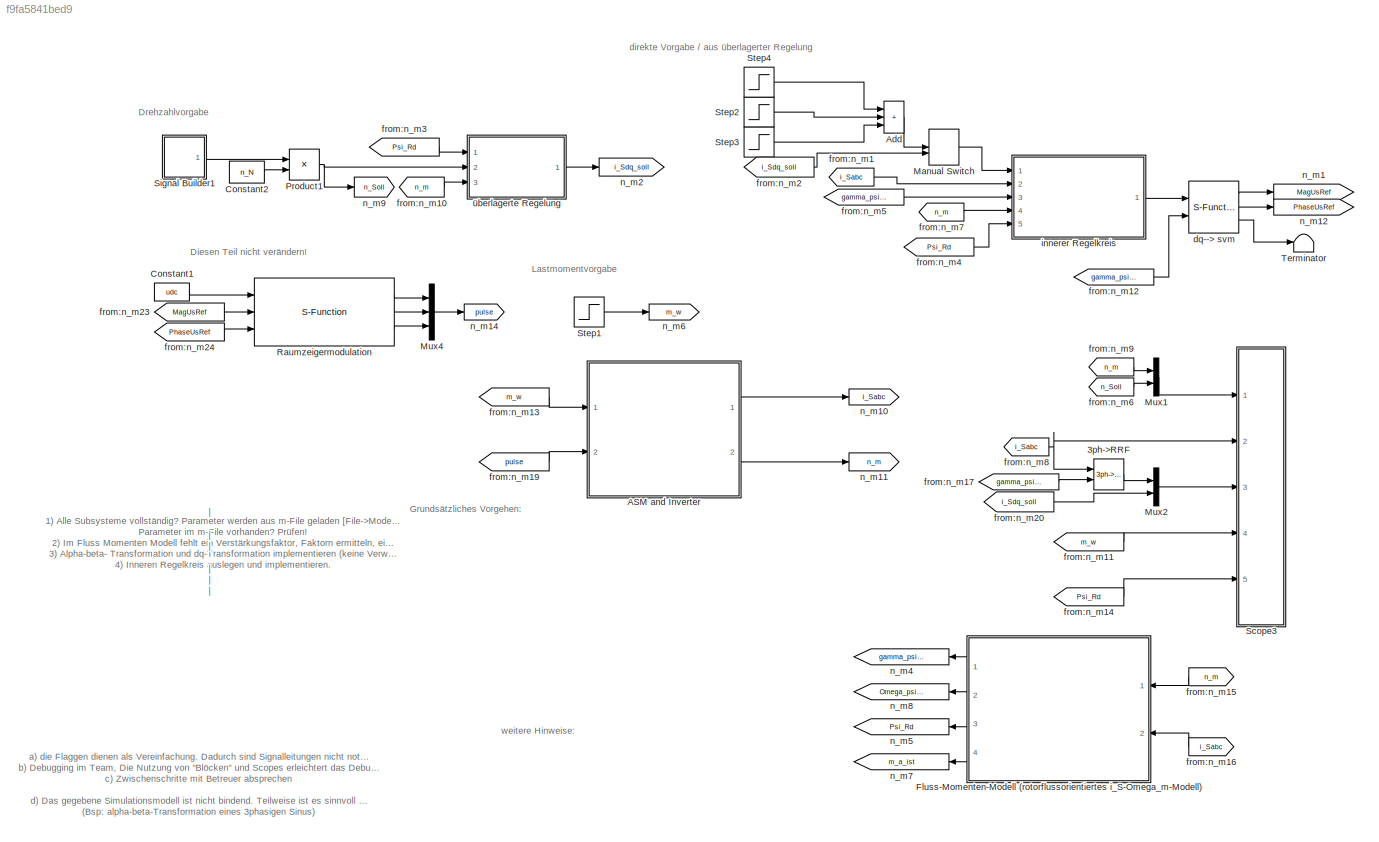
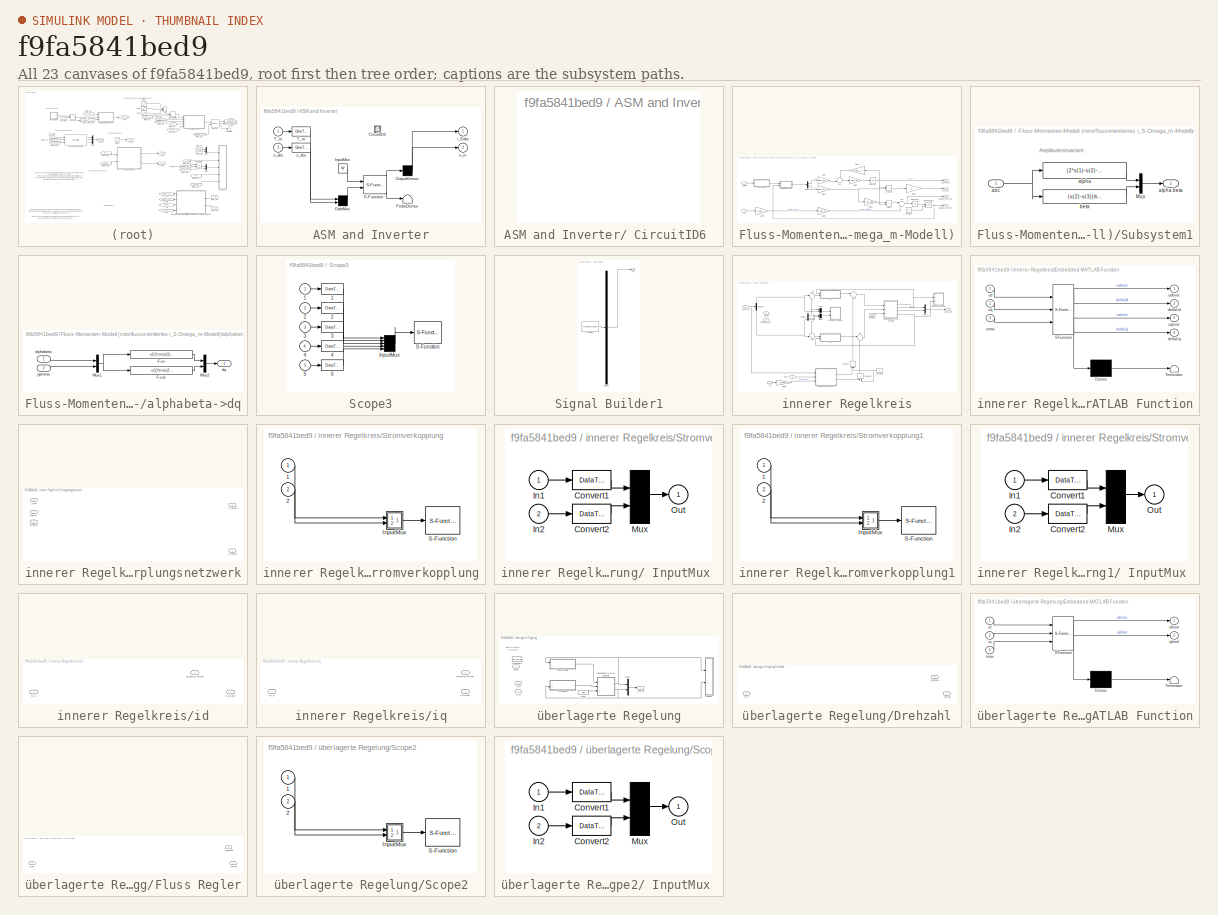
[diagram: thumbnail index - all 23 canvases of the model, root first then tree order]
MODEL mdl_f9fa5841bed9
KIND model
CONFIG AbsTol = auto
CONFIG EnableMultiTasking = on
CONFIG FixedStep = Ta
CONFIG MaxStep = 1e-5
CONFIG MinStep = auto
CONFIG RelTol = 1e-3
CONFIG SampleTimeConstraint = Unconstrained
CONFIG SolverName = ode45
CONFIG StartTime = 0.0
CONFIG StopTime = 0.5
BLOCK [Reference] 3ph->RRF  REF=plecslib_extras2/Transformations/3ph->RRF
  Ports = [2, 1]
  SourceBlock = plecslib_extras2/Transformations/3ph->RRF
  SourceProductName = PLECS Extras
  SourceType = Transformation 3ph->RRF
BLOCK [SubSystem] ASM and Inverter
  CopyFcn = plecs('sl', 203);
  DeleteFcn = plecs('sl', 205);
  DestroyFcn = plecs('sl', 207);
  ErrorFcn = plerrorfcn
  InitFcn = plecs('sl', 214);
  LoadFcn = plecs('sl', 200);
  NameChangeFcn = plecs('sl', 210);
  OpenFcn = plecs('sl', 202);
  Ports = [2, 2]
  PostSaveFcn = plecs('sl', 201);
  PreCopyFcn = plecs('sl', 216);
  PreSaveFcn = plecs('sl', 211);
  RequestExecContextInheritance = off
  StartFcn = plecs('sl', 208);
  StopFcn = plecs('sl', 209);
  UndoDeleteFcn = plecs('sl', 206);
BLOCK [SubSystem] ASM and Inverter/ CircuitID6 
  Ports = []
  RequestExecContextInheritance = off
BLOCK [Mux] ASM and Inverter/ GateMux 
  Inputs = [ 1 3 ]
  Ports = [2, 1]
BLOCK [Ground] ASM and Inverter/ InputMux 
BLOCK [Demux] ASM and Inverter/ OutputDemux 
  Outputs = [ 3 1 ]
  Ports = [1, 2]
BLOCK [Terminator] ASM and Inverter/ ProbeDemux 
BLOCK [S-Function] ASM and Inverter/ S-Function 
  EnableBusSupport = off
  FunctionName = plecs
  Ports = [2, 2]
  SFcnIsStateOwnerBlock = off
  SFunctionDeploymentMode = off
BLOCK [DataTypeConversion] ASM and Inverter/ T_m 
BLOCK [DataTypeConversion] ASM and Inverter/ s_abc 
BLOCK [Inport] ASM and Inverter/T_m
  PortDimensions = 1
BLOCK [Outport] ASM and Inverter/i_Sabc
  PortDimensions = 3
BLOCK [Outport] ASM and Inverter/n_m
  Port = 2
  PortDimensions = 1
BLOCK [Inport] ASM and Inverter/s_abc
  Port = 2
  PortDimensions = 3
BLOCK [Sum] Add
  IconShape = rectangular
  Inputs = +++
  NameLocation = top
  Ports = [3, 1]
BLOCK [Constant] Constant1
  Value = udc
BLOCK [Constant] Constant2
  Value = n_N
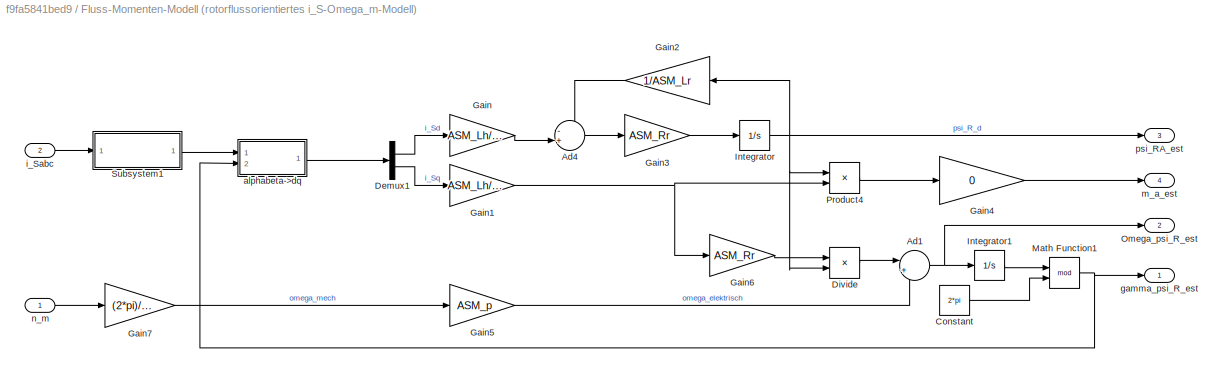
BLOCK [SubSystem] Fluss-Momenten-Modell (rotorflussorientiertes i_S-Omega_m-Modell)
  Ports = [2, 4]
  RequestExecContextInheritance = off
BLOCK [Sum] Fluss-Momenten-Modell (rotorflussorientiertes i_S-Omega_m-Modell)/Ad1
  Inputs = |++
  Ports = [2, 1]
BLOCK [Sum] Fluss-Momenten-Modell (rotorflussorientiertes i_S-Omega_m-Modell)/Ad4
  Inputs = -+|
  Ports = [2, 1]
BLOCK [Constant] Fluss-Momenten-Modell (rotorflussorientiertes i_S-Omega_m-Modell)/Constant
  Value = 2*pi
BLOCK [Demux] Fluss-Momenten-Modell (rotorflussorientiertes i_S-Omega_m-Modell)/Demux1
  Outputs = 2
  Ports = [1, 2]
BLOCK [Product] Fluss-Momenten-Modell (rotorflussorientiertes i_S-Omega_m-Modell)/Divide
  Inputs = */
  Ports = [2, 1]
BLOCK [Gain] Fluss-Momenten-Modell (rotorflussorientiertes i_S-Omega_m-Modell)/Gain
  Gain = ASM_Lh/ASM_Lr
BLOCK [Gain] Fluss-Momenten-Modell (rotorflussorientiertes i_S-Omega_m-Modell)/Gain1
  Gain = ASM_Lh/ASM_Lr
BLOCK [Gain] Fluss-Momenten-Modell (rotorflussorientiertes i_S-Omega_m-Modell)/Gain2
  Gain = 1/ASM_Lr
  NameLocation = top
BLOCK [Gain] Fluss-Momenten-Modell (rotorflussorientiertes i_S-Omega_m-Modell)/Gain3
  Gain = ASM_Rr
BLOCK [Gain] Fluss-Momenten-Modell (rotorflussorientiertes i_S-Omega_m-Modell)/Gain4
  Gain = 0
BLOCK [Gain] Fluss-Momenten-Modell (rotorflussorientiertes i_S-Omega_m-Modell)/Gain5
  Gain = ASM_p
BLOCK [Gain] Fluss-Momenten-Modell (rotorflussorientiertes i_S-Omega_m-Modell)/Gain6
  Gain = ASM_Rr
BLOCK [Gain] Fluss-Momenten-Modell (rotorflussorientiertes i_S-Omega_m-Modell)/Gain7
  Gain = (2*pi)/60
BLOCK [Integrator] Fluss-Momenten-Modell (rotorflussorientiertes i_S-Omega_m-Modell)/Integrator
  InitialCondition = 0.0001
  Ports = [1, 1]
BLOCK [Integrator] Fluss-Momenten-Modell (rotorflussorientiertes i_S-Omega_m-Modell)/Integrator1
  InitialCondition = 0.0001
  Ports = [1, 1]
BLOCK [Math] Fluss-Momenten-Modell (rotorflussorientiertes i_S-Omega_m-Modell)/Math Function1
  Operator = mod
  Ports = [2, 1]
  SignedPower = on
BLOCK [Outport] Fluss-Momenten-Modell (rotorflussorientiertes i_S-Omega_m-Modell)/Omega_psi_R_est
  Port = 2
BLOCK [Product] Fluss-Momenten-Modell (rotorflussorientiertes i_S-Omega_m-Modell)/Product4
  Ports = [2, 1]
  RndMeth = Zero
BLOCK [SubSystem] Fluss-Momenten-Modell (rotorflussorientiertes i_S-Omega_m-Modell)/Subsystem1
  Ports = [1, 1]
  RequestExecContextInheritance = off
BLOCK [Mux] Fluss-Momenten-Modell (rotorflussorientiertes i_S-Omega_m-Modell)/Subsystem1/Mux
  DisplayOption = bar
  Inputs = 2
  Ports = [2, 1]
BLOCK [Inport] Fluss-Momenten-Modell (rotorflussorientiertes i_S-Omega_m-Modell)/Subsystem1/abc
  PortDimensions = 3
BLOCK [Fcn] Fluss-Momenten-Modell (rotorflussorientiertes i_S-Omega_m-Modell)/Subsystem1/alpha
  Expr = (2*u(1)-u(2)-u(3))/3
BLOCK [Outport] Fluss-Momenten-Modell (rotorflussorientiertes i_S-Omega_m-Modell)/Subsystem1/alpha beta
BLOCK [Fcn] Fluss-Momenten-Modell (rotorflussorientiertes i_S-Omega_m-Modell)/Subsystem1/beta
  Expr = (u(2)-u(3))/sqrt(3)
BLOCK [SubSystem] Fluss-Momenten-Modell (rotorflussorientiertes i_S-Omega_m-Modell)/alphabeta->dq
  Ports = [2, 1]
  RequestExecContextInheritance = off
BLOCK [Fcn] Fluss-Momenten-Modell (rotorflussorientiertes i_S-Omega_m-Modell)/alphabeta->dq/Fcn
  Expr = u(1)*cos(u(3))+u(2)*sin(u(3))
BLOCK [Fcn] Fluss-Momenten-Modell (rotorflussorientiertes i_S-Omega_m-Modell)/alphabeta->dq/Fcn1
  Expr = -u(1)*sin(u(3))+u(2)*cos(u(3))
BLOCK [Mux] Fluss-Momenten-Modell (rotorflussorientiertes i_S-Omega_m-Modell)/alphabeta->dq/Mux1
  DisplayOption = bar
  Inputs = 2
  Ports = [2, 1]
BLOCK [Mux] Fluss-Momenten-Modell (rotorflussorientiertes i_S-Omega_m-Modell)/alphabeta->dq/Mux2
  DisplayOption = bar
  Inputs = 2
  Ports = [2, 1]
BLOCK [Inport] Fluss-Momenten-Modell (rotorflussorientiertes i_S-Omega_m-Modell)/alphabeta->dq/alphabeta
  NameLocation = top
BLOCK [Outport] Fluss-Momenten-Modell (rotorflussorientiertes i_S-Omega_m-Modell)/alphabeta->dq/dq
BLOCK [Inport] Fluss-Momenten-Modell (rotorflussorientiertes i_S-Omega_m-Modell)/alphabeta->dq/gamma
  Port = 2
BLOCK [Outport] Fluss-Momenten-Modell (rotorflussorientiertes i_S-Omega_m-Modell)/gamma_psi_R_est
BLOCK [Inport] Fluss-Momenten-Modell (rotorflussorientiertes i_S-Omega_m-Modell)/i_Sabc
  Port = 2
BLOCK [Outport] Fluss-Momenten-Modell (rotorflussorientiertes i_S-Omega_m-Modell)/m_a_est
  Port = 4
BLOCK [Inport] Fluss-Momenten-Modell (rotorflussorientiertes i_S-Omega_m-Modell)/n_m
BLOCK [Outport] Fluss-Momenten-Modell (rotorflussorientiertes i_S-Omega_m-Modell)/psi_RA_est
  Port = 3
BLOCK [ManualSwitch] Manual Switch
BLOCK [Mux] Mux1
  DisplayOption = bar
  Inputs = 2
  Ports = [2, 1]
BLOCK [Mux] Mux2
  DisplayOption = bar
  Inputs = 2
  Ports = [2, 1]
BLOCK [Mux] Mux4
  DisplayOption = bar
  Inputs = 3
  Ports = [3, 1]
BLOCK [Product] Product1
  Ports = [2, 1]
  RndMeth = Zero
BLOCK [S-Function] Raumzeigermodulation
  EnableBusSupport = off
  FunctionName = s_svm
  Parameters = f_sw*100,f_sw
  Ports = [3, 3]
  SFcnIsStateOwnerBlock = off
  SFunctionDeploymentMode = off
BLOCK [SubSystem] Scope3
  CopyFcn = plecs('sl', 303);
  DeleteFcn = plecs('sl', 305);
  DestroyFcn = plecs('sl', 307);
  ErrorFcn = plerrorfcn
  InitFcn = plecs('sl', 314);
  LoadFcn = plecs('sl', 300);
  NameChangeFcn = plecs('sl', 310);
  OpenFcn = plecs('sl', 302);
  Ports = [5]
  PreSaveFcn = plecs('sl', 311);
  RequestExecContextInheritance = off
  StartFcn = plecs('sl', 308);
  StopFcn = plecs('sl', 309);
  UndoDeleteFcn = plecs('sl', 306);
BLOCK [DataTypeConversion] Scope3/ 1 
BLOCK [DataTypeConversion] Scope3/ 2 
BLOCK [DataTypeConversion] Scope3/ 3 
BLOCK [DataTypeConversion] Scope3/ 4 
BLOCK [DataTypeConversion] Scope3/ 5 
BLOCK [Mux] Scope3/ InputMux 
  Inputs = 5
  Ports = [5, 1]
BLOCK [S-Function] Scope3/ S-Function 
  EnableBusSupport = off
  FunctionName = plecs
  Ports = [1]
  SFcnIsStateOwnerBlock = off
  SFunctionDeploymentMode = off
BLOCK [Inport] Scope3/1
BLOCK [Inport] Scope3/2
  Port = 2
BLOCK [Inport] Scope3/3
  Port = 3
BLOCK [Inport] Scope3/4
  Port = 4
BLOCK [Inport] Scope3/5
  Port = 5
BLOCK [SubSystem] Signal Builder1
  ClipboardFcn = sigbuilder_block('clipboard');
  CloseFcn = sigbuilder_block('close');
  ContinueFcn = sigbuilder_block('continue')
  CopyFcn = sigbuilder_block('copy');
  DeleteFcn = sigbuilder_block('delete');
  LoadFcn = sigbuilder_block('load');
  MaskHideContents = on
  ModelCloseFcn = sigbuilder_block('modelClose');
  NameChangeFcn = sigbuilder_block('namechange');
  OpenFcn = sigbuilder_block('open',[29.25 172.5 550.5 395.25 ]);
  PauseFcn = sigbuilder_block('pause')
  Ports = [0, 1]
  PreSaveFcn = sigbuilder_block('preSave');
  RequestExecContextInheritance = off
  StartFcn = sigbuilder_block('start');
  StopFcn = sigbuilder_block('stop');
  Tag = STV Subsys
BLOCK [Demux] Signal Builder1/Demux
  DisplayOption = none
  Outputs = 1
  Ports = [1, 1]
  Tag = STV Demux
BLOCK [FromWorkspace] Signal Builder1/FromWs
  Tag = STV FromWs
  VariableName = tuvar
BLOCK [Outport] Signal Builder1/n%
  Tag = STV Outport
BLOCK [Step] Step1
  After = 2
  SampleTime = 0
  Time = 9
BLOCK [Step] Step2
  After = [1.5 2]
  Before = [1.5 0]
  SampleTime = 0
  Time = 0.1
BLOCK [Step] Step3
  After = [0 -2]
  Before = [0 0]
  SampleTime = 0
  Time = 0.2
BLOCK [Step] Step4
  After = [0 0]
  Before = [-1.5 0]
  SampleTime = 0
  Time = 0.05
BLOCK [Terminator] Terminator
BLOCK [S-Function] dq--> svm
  EnableBusSupport = off
  FunctionName = s_dq_svm_transformation
  NameLocation = top
  Parameters = f_sw
  Ports = [2, 3]
  SFcnIsStateOwnerBlock = off
  SFunctionDeploymentMode = off
BLOCK [From] from:n_m1
  GotoTag = i_Sabc
BLOCK [From] from:n_m10
  GotoTag = n_m
BLOCK [From] from:n_m11
  GotoTag = m_w
BLOCK [From] from:n_m12
  GotoTag = gamma_psi_R
BLOCK [From] from:n_m13
  GotoTag = m_w
BLOCK [From] from:n_m14
  GotoTag = Psi_Rd
BLOCK [From] from:n_m15
  GotoTag = n_m
  NameLocation = top
BLOCK [From] from:n_m16
  GotoTag = i_Sabc
  NameLocation = top
BLOCK [From] from:n_m17
  GotoTag = gamma_psi_R
BLOCK [From] from:n_m19
  GotoTag = pulse
BLOCK [From] from:n_m2
  GotoTag = i_Sdq_soll
BLOCK [From] from:n_m20
  GotoTag = i_Sdq_soll
BLOCK [From] from:n_m23
  GotoTag = MagUsRef
BLOCK [From] from:n_m24
  GotoTag = PhaseUsRef
BLOCK [From] from:n_m3
  GotoTag = Psi_Rd
BLOCK [From] from:n_m4
  GotoTag = Psi_Rd
BLOCK [From] from:n_m5
  GotoTag = gamma_psi_R
BLOCK [From] from:n_m6
  GotoTag = n_Soll
BLOCK [From] from:n_m7
  GotoTag = n_m
BLOCK [From] from:n_m8
  GotoTag = i_Sabc
BLOCK [From] from:n_m9
  GotoTag = n_m
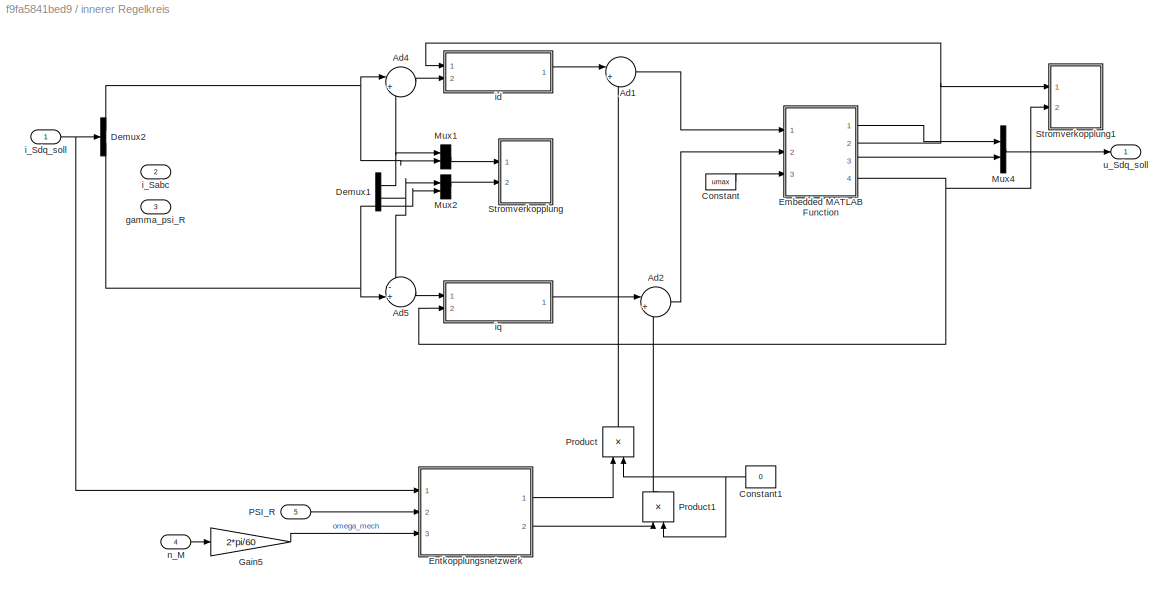
BLOCK [SubSystem] innerer Regelkreis
  Ports = [5, 1]
  RequestExecContextInheritance = off
BLOCK [Sum] innerer Regelkreis/Ad1
  Inputs = |++
  Ports = [2, 1]
BLOCK [Sum] innerer Regelkreis/Ad2
  Inputs = |++
  Ports = [2, 1]
BLOCK [Sum] innerer Regelkreis/Ad4
  Inputs = |+-
  Ports = [2, 1]
BLOCK [Sum] innerer Regelkreis/Ad5
  Inputs = -+|
  Ports = [2, 1]
BLOCK [Constant] innerer Regelkreis/Constant
  Value = umax
BLOCK [Constant] innerer Regelkreis/Constant1
  NameLocation = top
  Value = 0
BLOCK [Demux] innerer Regelkreis/Demux1
  Outputs = 2
  Ports = [1, 2]
BLOCK [Demux] innerer Regelkreis/Demux2
  Outputs = 2
  Ports = [1, 2]
BLOCK [SubSystem] innerer Regelkreis/Embedded MATLAB Function
  ErrorFcn = Stateflow.Translate.translate
  PermitHierarchicalResolution = ExplicitOnly
  Ports = [3, 4]
  RequestExecContextInheritance = off
  SFBlockType = MATLAB Function
  TreatAsAtomicUnit = on
BLOCK [Demux] innerer Regelkreis/Embedded MATLAB Function/ Demux 
  Outputs = 1
  Ports = [1, 1]
BLOCK [S-Function] innerer Regelkreis/Embedded MATLAB Function/ SFunction 
  EnableBusSupport = on
  FunctionName = sf_sfun
  PortCounts = [3 5]
  Ports = [3, 5]
  SFcnIsStateOwnerBlock = off
  SFunctionDeploymentMode = off
  Tag = Stateflow S-Function 2
BLOCK [Terminator] innerer Regelkreis/Embedded MATLAB Function/ Terminator 
BLOCK [Outport] innerer Regelkreis/Embedded MATLAB Function/deltaUd
  Port = 2
BLOCK [Outport] innerer Regelkreis/Embedded MATLAB Function/deltaUq
  Port = 4
BLOCK [Inport] innerer Regelkreis/Embedded MATLAB Function/ud
BLOCK [Outport] innerer Regelkreis/Embedded MATLAB Function/udlimit
BLOCK [Inport] innerer Regelkreis/Embedded MATLAB Function/umax
  Port = 3
BLOCK [Inport] innerer Regelkreis/Embedded MATLAB Function/uq
  Port = 2
BLOCK [Outport] innerer Regelkreis/Embedded MATLAB Function/uqlimit
  Port = 3
BLOCK [SubSystem] innerer Regelkreis/Entkopplungsnetzwerk
  Ports = [3, 2]
  RequestExecContextInheritance = off
BLOCK [Inport] innerer Regelkreis/Entkopplungsnetzwerk/I_S_dq
BLOCK [Inport] innerer Regelkreis/Entkopplungsnetzwerk/Psi_Rd
  Port = 2
BLOCK [Outport] innerer Regelkreis/Entkopplungsnetzwerk/U_Sd,ent
BLOCK [Outport] innerer Regelkreis/Entkopplungsnetzwerk/U_Sq,ent
  Port = 2
BLOCK [Inport] innerer Regelkreis/Entkopplungsnetzwerk/omega_M
  Port = 3
BLOCK [Gain] innerer Regelkreis/Gain5
  Gain = 2*pi/60
BLOCK [Mux] innerer Regelkreis/Mux1
  DisplayOption = bar
  Inputs = 2
  Ports = [2, 1]
BLOCK [Mux] innerer Regelkreis/Mux2
  DisplayOption = bar
  Inputs = 2
  Ports = [2, 1]
BLOCK [Mux] innerer Regelkreis/Mux4
  DisplayOption = bar
  Inputs = 2
  Ports = [2, 1]
BLOCK [Inport] innerer Regelkreis/PSI_R
  Port = 5
BLOCK [Product] innerer Regelkreis/Product
  NameLocation = right
  Ports = [2, 1]
  RndMeth = Zero
BLOCK [Product] innerer Regelkreis/Product1
  NameLocation = right
  Ports = [2, 1]
  RndMeth = Zero
BLOCK [SubSystem] innerer Regelkreis/Stromverkopplung
  CopyFcn = plecs('sl', 303);
  DeleteFcn = plecs('sl', 305);
  DestroyFcn = plecs('sl', 307);
  ErrorFcn = plerrorfcn
  InitFcn = plecs('sl', 314);
  LoadFcn = plecs('sl', 300);
  NameChangeFcn = plecs('sl', 310);
  OpenFcn = plecs('sl', 302);
  Ports = [2]
  PreSaveFcn = plecs('sl', 311);
  RequestExecContextInheritance = off
  StartFcn = plecs('sl', 308);
  StopFcn = plecs('sl', 309);
  UndoDeleteFcn = plecs('sl', 306);
BLOCK [SubSystem] innerer Regelkreis/Stromverkopplung/ InputMux 
  Ports = [2, 1]
  RequestExecContextInheritance = off
BLOCK [DataTypeConversion] innerer Regelkreis/Stromverkopplung/ InputMux /Convert1
BLOCK [DataTypeConversion] innerer Regelkreis/Stromverkopplung/ InputMux /Convert2
BLOCK [Inport] innerer Regelkreis/Stromverkopplung/ InputMux /In1
BLOCK [Inport] innerer Regelkreis/Stromverkopplung/ InputMux /In2
  Port = 2
BLOCK [Mux] innerer Regelkreis/Stromverkopplung/ InputMux /Mux
  Inputs = 2
  Ports = [2, 1]
BLOCK [Outport] innerer Regelkreis/Stromverkopplung/ InputMux /Out
BLOCK [S-Function] innerer Regelkreis/Stromverkopplung/ S-Function 
  EnableBusSupport = off
  FunctionName = plecs
  Ports = [1]
  SFcnIsStateOwnerBlock = off
  SFunctionDeploymentMode = off
BLOCK [Inport] innerer Regelkreis/Stromverkopplung/1
BLOCK [Inport] innerer Regelkreis/Stromverkopplung/2
  Port = 2
BLOCK [SubSystem] innerer Regelkreis/Stromverkopplung1
  CopyFcn = plecs('sl', 303);
  DeleteFcn = plecs('sl', 305);
  DestroyFcn = plecs('sl', 307);
  ErrorFcn = plerrorfcn
  InitFcn = plecs('sl', 314);
  LoadFcn = plecs('sl', 300);
  NameChangeFcn = plecs('sl', 310);
  OpenFcn = plecs('sl', 302);
  Ports = [2]
  PreSaveFcn = plecs('sl', 311);
  RequestExecContextInheritance = off
  StartFcn = plecs('sl', 308);
  StopFcn = plecs('sl', 309);
  UndoDeleteFcn = plecs('sl', 306);
BLOCK [SubSystem] innerer Regelkreis/Stromverkopplung1/ InputMux 
  Ports = [2, 1]
  RequestExecContextInheritance = off
BLOCK [DataTypeConversion] innerer Regelkreis/Stromverkopplung1/ InputMux /Convert1
BLOCK [DataTypeConversion] innerer Regelkreis/Stromverkopplung1/ InputMux /Convert2
BLOCK [Inport] innerer Regelkreis/Stromverkopplung1/ InputMux /In1
BLOCK [Inport] innerer Regelkreis/Stromverkopplung1/ InputMux /In2
  Port = 2
BLOCK [Mux] innerer Regelkreis/Stromverkopplung1/ InputMux /Mux
  Inputs = 2
  Ports = [2, 1]
BLOCK [Outport] innerer Regelkreis/Stromverkopplung1/ InputMux /Out
BLOCK [S-Function] innerer Regelkreis/Stromverkopplung1/ S-Function 
  EnableBusSupport = off
  FunctionName = plecs
  Ports = [1]
  SFcnIsStateOwnerBlock = off
  SFunctionDeploymentMode = off
BLOCK [Inport] innerer Regelkreis/Stromverkopplung1/1
BLOCK [Inport] innerer Regelkreis/Stromverkopplung1/2
  Port = 2
BLOCK [Inport] innerer Regelkreis/gamma_psi_R
  NameLocation = top
  Port = 3
BLOCK [Inport] innerer Regelkreis/i_Sabc
  NameLocation = top
  Port = 2
BLOCK [Inport] innerer Regelkreis/i_Sdq_soll
BLOCK [SubSystem] innerer Regelkreis/id
  Ports = [2, 1]
  RequestExecContextInheritance = off
BLOCK [Inport] innerer Regelkreis/id/e_i_d
  Port = 2
BLOCK [Outport] innerer Regelkreis/id/u_Sd_soll
BLOCK [Inport] innerer Regelkreis/id/us_delta_limited
  NameLocation = top
BLOCK [SubSystem] innerer Regelkreis/iq
  Ports = [2, 1]
  RequestExecContextInheritance = off
BLOCK [Inport] innerer Regelkreis/iq/e_i_d
BLOCK [Outport] innerer Regelkreis/iq/u_Sq_soll
BLOCK [Inport] innerer Regelkreis/iq/us_delta_limited
  NameLocation = top
  Port = 2
BLOCK [Inport] innerer Regelkreis/n_M
  Port = 4
BLOCK [Outport] innerer Regelkreis/u_Sdq_soll
BLOCK [Goto] n_m1
  GotoTag = MagUsRef
BLOCK [Goto] n_m10
  GotoTag = i_Sabc
BLOCK [Goto] n_m11
  GotoTag = n_m
BLOCK [Goto] n_m12
  GotoTag = PhaseUsRef
BLOCK [Goto] n_m14
  GotoTag = pulse
BLOCK [Goto] n_m2
  GotoTag = i_Sdq_soll
BLOCK [Goto] n_m4
  GotoTag = gamma_psi_R
  NameLocation = top
BLOCK [Goto] n_m5
  GotoTag = Psi_Rd
  NameLocation = top
BLOCK [Goto] n_m6
  GotoTag = m_w
BLOCK [Goto] n_m7
  GotoTag = m_a_ist
  NameLocation = top
BLOCK [Goto] n_m8
  GotoTag = Omega_psi_R
  NameLocation = top
BLOCK [Goto] n_m9
  GotoTag = n_Soll
BLOCK [SubSystem] überlagerte Regelung
  Ports = [3, 1]
  RequestExecContextInheritance = off
BLOCK [Constant] überlagerte Regelung/Constant1
  Value = ASM_PSI_RN
BLOCK [SubSystem] überlagerte Regelung/Drehzahl
  Ports = [2, 1]
  RequestExecContextInheritance = off
BLOCK [Inport] überlagerte Regelung/Drehzahl/e_i_d
BLOCK [Outport] überlagerte Regelung/Drehzahl/i_Sq_soll
BLOCK [Inport] überlagerte Regelung/Drehzahl/i_q_limited
  NameLocation = top
  Port = 2
BLOCK [SubSystem] überlagerte Regelung/Embedded MATLAB Function
  ErrorFcn = Stateflow.Translate.translate
  PermitHierarchicalResolution = ExplicitOnly
  Ports = [3, 2]
  RequestExecContextInheritance = off
  SFBlockType = MATLAB Function
  TreatAsAtomicUnit = on
BLOCK [Demux] überlagerte Regelung/Embedded MATLAB Function/ Demux 
  Outputs = 1
  Ports = [1, 1]
BLOCK [S-Function] überlagerte Regelung/Embedded MATLAB Function/ SFunction 
  EnableBusSupport = on
  FunctionName = sf_sfun
  PortCounts = [3 3]
  Ports = [3, 3]
  SFcnIsStateOwnerBlock = off
  SFunctionDeploymentMode = off
  Tag = Stateflow S-Function 1
BLOCK [Terminator] überlagerte Regelung/Embedded MATLAB Function/ Terminator 
BLOCK [Inport] überlagerte Regelung/Embedded MATLAB Function/id
BLOCK [Outport] überlagerte Regelung/Embedded MATLAB Function/idlimit
BLOCK [Inport] überlagerte Regelung/Embedded MATLAB Function/imax
  Port = 3
BLOCK [Inport] überlagerte Regelung/Embedded MATLAB Function/iq
  Port = 2
BLOCK [Outport] überlagerte Regelung/Embedded MATLAB Function/iqlimit
  Port = 2
BLOCK [SubSystem] überlagerte Regelung/Fluss Regler
  Ports = [2, 1]
  RequestExecContextInheritance = off
BLOCK [Inport] überlagerte Regelung/Fluss Regler/e_psi
  Port = 2
BLOCK [Outport] überlagerte Regelung/Fluss Regler/i_Sd_soll
BLOCK [Inport] überlagerte Regelung/Fluss Regler/i_d_limited
  NameLocation = top
BLOCK [Mux] überlagerte Regelung/Mux1
  DisplayOption = bar
  Inputs = 2
  Ports = [2, 1]
BLOCK [SubSystem] überlagerte Regelung/Scope2
  CopyFcn = plecs('sl', 303);
  DeleteFcn = plecs('sl', 305);
  DestroyFcn = plecs('sl', 307);
  ErrorFcn = plerrorfcn
  InitFcn = plecs('sl', 314);
  LoadFcn = plecs('sl', 300);
  NameChangeFcn = plecs('sl', 310);
  OpenFcn = plecs('sl', 302);
  Ports = [2]
  PreSaveFcn = plecs('sl', 311);
  RequestExecContextInheritance = off
  StartFcn = plecs('sl', 308);
  StopFcn = plecs('sl', 309);
  UndoDeleteFcn = plecs('sl', 306);
BLOCK [SubSystem] überlagerte Regelung/Scope2/ InputMux 
  Ports = [2, 1]
  RequestExecContextInheritance = off
BLOCK [DataTypeConversion] überlagerte Regelung/Scope2/ InputMux /Convert1
BLOCK [DataTypeConversion] überlagerte Regelung/Scope2/ InputMux /Convert2
BLOCK [Inport] überlagerte Regelung/Scope2/ InputMux /In1
BLOCK [Inport] überlagerte Regelung/Scope2/ InputMux /In2
  Port = 2
BLOCK [Mux] überlagerte Regelung/Scope2/ InputMux /Mux
  Inputs = 2
  Ports = [2, 1]
BLOCK [Outport] überlagerte Regelung/Scope2/ InputMux /Out
BLOCK [S-Function] überlagerte Regelung/Scope2/ S-Function 
  EnableBusSupport = off
  FunctionName = plecs
  Ports = [1]
  SFcnIsStateOwnerBlock = off
  SFunctionDeploymentMode = off
BLOCK [Inport] überlagerte Regelung/Scope2/1
BLOCK [Inport] überlagerte Regelung/Scope2/2
  Port = 2
BLOCK [Outport] überlagerte Regelung/i_dq_soll
  InitialOutput = [0 0]
BLOCK [Constant] überlagerte Regelung/imax
  Value = imax
BLOCK [Inport] überlagerte Regelung/n_Ist
  Port = 3
BLOCK [Inport] überlagerte Regelung/n_Soll
  Port = 2
BLOCK [Inport] überlagerte Regelung/psi_R
ANNOTATION (root): 1) Alle Subsysteme vollständig? Parameter werden aus m-File geladen [File->Model-Properties->Callbacks]. Parameter im m-File vorhanden? Prüfen! 2) Im Fluss Momenten Modell fehlt ein Verstärkungsfaktor, Faktorn ermitteln, eintragen und überprüfen 3) Alpha-beta- Transformation und dq-Transformation implementieren (keine Verwendung der Plecs-Blöcke!) 4) Inneren Regelkreis auslegen und implementieren....<+305ch>
ANNOTATION (root): Diesen Teil nicht verändern!
ANNOTATION (root): Drehzahlvorgabe
ANNOTATION (root): Grundsätzliches Vorgehen:
ANNOTATION (root): Lastmomentvorgabe
ANNOTATION (root): a) die Flaggen dienen als Vereinfachung. Dadurch sind Signalleitungen nicht notwendig. Dies erhöht die Übersicht! b) Debugging im Team, Die Nutzung von "Blöcken" und Scopes erleichtert das Debugging c) Zwischenschritte mit Betreuer absprechen d) Das gegebene Simulationsmodell ist nicht bindend. Teilweise ist es sinnvoll ein kleineres Modell zur Verifikation eines Sachverhalts zu nutzen (Bsp: alpha...<+43ch>
ANNOTATION (root): direkte Vorgabe / aus überlagerter Regelung
ANNOTATION (root): weitere Hinweise:
ANNOTATION (root): | | | | | | | | | | | | | |
ANNOTATION Fluss-Momenten-Modell (rotorflussorientiertes i_S-Omega_m-Modell)/Subsystem1: Amplitudeninvariant
ANNOTATION überlagerte Regelung: Sollwertvorgabe Rotorfluss
LINE 3ph->RRF:1 -> Mux2:1
LINE ASM and Inverter:1 -> n_m10:1
LINE ASM and Inverter:2 -> n_m11:1
LINE Add:1 -> Manual Switch:1
LINE Constant1:1 -> Raumzeigermodulation:1
LINE Constant2:1 -> Product1:2
NET Fluss-Momenten-Modell (rotorflussorientiertes i_S-Omega_m-Modell)/Ad1:1 -> Fluss-Momenten-Modell (rotorflussorientiertes i_S-Omega_m-Modell)/Integrator1:1, Fluss-Momenten-Modell (rotorflussorientiertes i_S-Omega_m-Modell)/Omega_psi_R_est:1
LINE Fluss-Momenten-Modell (rotorflussorientiertes i_S-Omega_m-Modell)/Ad4:1 -> Fluss-Momenten-Modell (rotorflussorientiertes i_S-Omega_m-Modell)/Gain3:1
LINE Fluss-Momenten-Modell (rotorflussorientiertes i_S-Omega_m-Modell)/Constant:1 -> Fluss-Momenten-Modell (rotorflussorientiertes i_S-Omega_m-Modell)/Math Function1:2
LINE Fluss-Momenten-Modell (rotorflussorientiertes i_S-Omega_m-Modell)/Demux1:1 -> Fluss-Momenten-Modell (rotorflussorientiertes i_S-Omega_m-Modell)/Gain:1
LINE Fluss-Momenten-Modell (rotorflussorientiertes i_S-Omega_m-Modell)/Demux1:2 -> Fluss-Momenten-Modell (rotorflussorientiertes i_S-Omega_m-Modell)/Gain1:1
LINE Fluss-Momenten-Modell (rotorflussorientiertes i_S-Omega_m-Modell)/Divide:1 -> Fluss-Momenten-Modell (rotorflussorientiertes i_S-Omega_m-Modell)/Ad1:1
NET Fluss-Momenten-Modell (rotorflussorientiertes i_S-Omega_m-Modell)/Gain1:1 -> Fluss-Momenten-Modell (rotorflussorientiertes i_S-Omega_m-Modell)/Gain6:1, Fluss-Momenten-Modell (rotorflussorientiertes i_S-Omega_m-Modell)/Product4:2
LINE Fluss-Momenten-Modell (rotorflussorientiertes i_S-Omega_m-Modell)/Gain2:1 -> Fluss-Momenten-Modell (rotorflussorientiertes i_S-Omega_m-Modell)/Ad4:1
LINE Fluss-Momenten-Modell (rotorflussorientiertes i_S-Omega_m-Modell)/Gain3:1 -> Fluss-Momenten-Modell (rotorflussorientiertes i_S-Omega_m-Modell)/Integrator:1
LINE Fluss-Momenten-Modell (rotorflussorientiertes i_S-Omega_m-Modell)/Gain4:1 -> Fluss-Momenten-Modell (rotorflussorientiertes i_S-Omega_m-Modell)/m_a_est:1
LINE Fluss-Momenten-Modell (rotorflussorientiertes i_S-Omega_m-Modell)/Gain5:1 -> Fluss-Momenten-Modell (rotorflussorientiertes i_S-Omega_m-Modell)/Ad1:2
LINE Fluss-Momenten-Modell (rotorflussorientiertes i_S-Omega_m-Modell)/Gain6:1 -> Fluss-Momenten-Modell (rotorflussorientiertes i_S-Omega_m-Modell)/Divide:1
LINE Fluss-Momenten-Modell (rotorflussorientiertes i_S-Omega_m-Modell)/Gain7:1 -> Fluss-Momenten-Modell (rotorflussorientiertes i_S-Omega_m-Modell)/Gain5:1
LINE Fluss-Momenten-Modell (rotorflussorientiertes i_S-Omega_m-Modell)/Gain:1 -> Fluss-Momenten-Modell (rotorflussorientiertes i_S-Omega_m-Modell)/Ad4:2
LINE Fluss-Momenten-Modell (rotorflussorientiertes i_S-Omega_m-Modell)/Integrator1:1 -> Fluss-Momenten-Modell (rotorflussorientiertes i_S-Omega_m-Modell)/Math Function1:1
NET Fluss-Momenten-Modell (rotorflussorientiertes i_S-Omega_m-Modell)/Integrator:1 -> Fluss-Momenten-Modell (rotorflussorientiertes i_S-Omega_m-Modell)/Divide:2, Fluss-Momenten-Modell (rotorflussorientiertes i_S-Omega_m-Modell)/Gain2:1, Fluss-Momenten-Modell (rotorflussorientiertes i_S-Omega_m-Modell)/Product4:1, Fluss-Momenten-Modell (rotorflussorientiertes i_S-Omega_m-Modell)/psi_RA_est:1
NET Fluss-Momenten-Modell (rotorflussorientiertes i_S-Omega_m-Modell)/Math Function1:1 -> Fluss-Momenten-Modell (rotorflussorientiertes i_S-Omega_m-Modell)/alphabeta->dq:2, Fluss-Momenten-Modell (rotorflussorientiertes i_S-Omega_m-Modell)/gamma_psi_R_est:1
LINE Fluss-Momenten-Modell (rotorflussorientiertes i_S-Omega_m-Modell)/Product4:1 -> Fluss-Momenten-Modell (rotorflussorientiertes i_S-Omega_m-Modell)/Gain4:1
LINE Fluss-Momenten-Modell (rotorflussorientiertes i_S-Omega_m-Modell)/Subsystem1/Mux:1 -> Fluss-Momenten-Modell (rotorflussorientiertes i_S-Omega_m-Modell)/Subsystem1/alpha beta:1
NET Fluss-Momenten-Modell (rotorflussorientiertes i_S-Omega_m-Modell)/Subsystem1/abc:1 -> Fluss-Momenten-Modell (rotorflussorientiertes i_S-Omega_m-Modell)/Subsystem1/alpha:1, Fluss-Momenten-Modell (rotorflussorientiertes i_S-Omega_m-Modell)/Subsystem1/beta:1
LINE Fluss-Momenten-Modell (rotorflussorientiertes i_S-Omega_m-Modell)/Subsystem1/alpha:1 -> Fluss-Momenten-Modell (rotorflussorientiertes i_S-Omega_m-Modell)/Subsystem1/Mux:1
LINE Fluss-Momenten-Modell (rotorflussorientiertes i_S-Omega_m-Modell)/Subsystem1/beta:1 -> Fluss-Momenten-Modell (rotorflussorientiertes i_S-Omega_m-Modell)/Subsystem1/Mux:2
LINE Fluss-Momenten-Modell (rotorflussorientiertes i_S-Omega_m-Modell)/Subsystem1:1 -> Fluss-Momenten-Modell (rotorflussorientiertes i_S-Omega_m-Modell)/alphabeta->dq:1
LINE Fluss-Momenten-Modell (rotorflussorientiertes i_S-Omega_m-Modell)/alphabeta->dq/Fcn1:1 -> Fluss-Momenten-Modell (rotorflussorientiertes i_S-Omega_m-Modell)/alphabeta->dq/Mux2:2
LINE Fluss-Momenten-Modell (rotorflussorientiertes i_S-Omega_m-Modell)/alphabeta->dq/Fcn:1 -> Fluss-Momenten-Modell (rotorflussorientiertes i_S-Omega_m-Modell)/alphabeta->dq/Mux2:1
NET Fluss-Momenten-Modell (rotorflussorientiertes i_S-Omega_m-Modell)/alphabeta->dq/Mux1:1 -> Fluss-Momenten-Modell (rotorflussorientiertes i_S-Omega_m-Modell)/alphabeta->dq/Fcn1:1, Fluss-Momenten-Modell (rotorflussorientiertes i_S-Omega_m-Modell)/alphabeta->dq/Fcn:1
LINE Fluss-Momenten-Modell (rotorflussorientiertes i_S-Omega_m-Modell)/alphabeta->dq/Mux2:1 -> Fluss-Momenten-Modell (rotorflussorientiertes i_S-Omega_m-Modell)/alphabeta->dq/dq:1
LINE Fluss-Momenten-Modell (rotorflussorientiertes i_S-Omega_m-Modell)/alphabeta->dq/alphabeta:1 -> Fluss-Momenten-Modell (rotorflussorientiertes i_S-Omega_m-Modell)/alphabeta->dq/Mux1:1
LINE Fluss-Momenten-Modell (rotorflussorientiertes i_S-Omega_m-Modell)/alphabeta->dq/gamma:1 -> Fluss-Momenten-Modell (rotorflussorientiertes i_S-Omega_m-Modell)/alphabeta->dq/Mux1:2
LINE Fluss-Momenten-Modell (rotorflussorientiertes i_S-Omega_m-Modell)/alphabeta->dq:1 -> Fluss-Momenten-Modell (rotorflussorientiertes i_S-Omega_m-Modell)/Demux1:1
LINE Fluss-Momenten-Modell (rotorflussorientiertes i_S-Omega_m-Modell)/i_Sabc:1 -> Fluss-Momenten-Modell (rotorflussorientiertes i_S-Omega_m-Modell)/Subsystem1:1
LINE Fluss-Momenten-Modell (rotorflussorientiertes i_S-Omega_m-Modell)/n_m:1 -> Fluss-Momenten-Modell (rotorflussorientiertes i_S-Omega_m-Modell)/Gain7:1
LINE Fluss-Momenten-Modell (rotorflussorientiertes i_S-Omega_m-Modell):1 -> n_m4:1
LINE Fluss-Momenten-Modell (rotorflussorientiertes i_S-Omega_m-Modell):2 -> n_m8:1
LINE Fluss-Momenten-Modell (rotorflussorientiertes i_S-Omega_m-Modell):3 -> n_m5:1
LINE Fluss-Momenten-Modell (rotorflussorientiertes i_S-Omega_m-Modell):4 -> n_m7:1
LINE Manual Switch:1 -> innerer Regelkreis:1
LINE Mux1:1 -> Scope3:1
LINE Mux2:1 -> Scope3:3
LINE Mux4:1 -> n_m14:1
NET Product1:1 -> n_m9:1, überlagerte Regelung:2
LINE Raumzeigermodulation:1 -> Mux4:1
LINE Raumzeigermodulation:2 -> Mux4:2
LINE Raumzeigermodulation:3 -> Mux4:3
LINE Scope3/ 1 :1 -> Scope3/ InputMux :1
LINE Scope3/ 2 :1 -> Scope3/ InputMux :2
LINE Scope3/ 3 :1 -> Scope3/ InputMux :3
LINE Scope3/ 4 :1 -> Scope3/ InputMux :4
LINE Scope3/ 5 :1 -> Scope3/ InputMux :5
LINE Scope3/ InputMux :1 -> Scope3/ S-Function :1
LINE Scope3/1:1 -> Scope3/ 1 :1
LINE Scope3/2:1 -> Scope3/ 2 :1
LINE Scope3/3:1 -> Scope3/ 3 :1
LINE Scope3/4:1 -> Scope3/ 4 :1
LINE Scope3/5:1 -> Scope3/ 5 :1
LINE Signal Builder1:1 -> Product1:1
LINE Step1:1 -> n_m6:1
LINE Step2:1 -> Add:2
LINE Step3:1 -> Add:3
LINE Step4:1 -> Add:1
LINE dq--> svm:1 -> n_m1:1
LINE dq--> svm:2 -> n_m12:1
LINE dq--> svm:3 -> Terminator:1
LINE from:n_m10:1 -> überlagerte Regelung:3
LINE from:n_m11:1 -> Scope3:4
LINE from:n_m12:1 -> dq--> svm:2
LINE from:n_m13:1 -> ASM and Inverter:1
LINE from:n_m14:1 -> Scope3:5
LINE from:n_m15:1 -> Fluss-Momenten-Modell (rotorflussorientiertes i_S-Omega_m-Modell):1
LINE from:n_m16:1 -> Fluss-Momenten-Modell (rotorflussorientiertes i_S-Omega_m-Modell):2
LINE from:n_m17:1 -> 3ph->RRF:2
LINE from:n_m19:1 -> ASM and Inverter:2
LINE from:n_m1:1 -> innerer Regelkreis:2
LINE from:n_m20:1 -> Mux2:2
LINE from:n_m23:1 -> Raumzeigermodulation:2
LINE from:n_m24:1 -> Raumzeigermodulation:3
LINE from:n_m2:1 -> Manual Switch:2
LINE from:n_m3:1 -> überlagerte Regelung:1
LINE from:n_m4:1 -> innerer Regelkreis:5
LINE from:n_m5:1 -> innerer Regelkreis:3
LINE from:n_m6:1 -> Mux1:2
LINE from:n_m7:1 -> innerer Regelkreis:4
NET from:n_m8:1 -> 3ph->RRF:1, Scope3:2
LINE from:n_m9:1 -> Mux1:1
LINE innerer Regelkreis/Ad1:1 -> innerer Regelkreis/Embedded MATLAB Function:1
LINE innerer Regelkreis/Ad2:1 -> innerer Regelkreis/Embedded MATLAB Function:2
LINE innerer Regelkreis/Ad4:1 -> innerer Regelkreis/id:2
LINE innerer Regelkreis/Ad5:1 -> innerer Regelkreis/iq:1
NET innerer Regelkreis/Constant1:1 -> innerer Regelkreis/Product1:2, innerer Regelkreis/Product:2
LINE innerer Regelkreis/Constant:1 -> innerer Regelkreis/Embedded MATLAB Function:3
NET innerer Regelkreis/Demux1:1 -> innerer Regelkreis/Ad4:2, innerer Regelkreis/Mux1:1
NET innerer Regelkreis/Demux1:2 -> innerer Regelkreis/Ad5:1, innerer Regelkreis/Mux2:1
NET innerer Regelkreis/Demux2:1 -> innerer Regelkreis/Ad4:1, innerer Regelkreis/Mux1:2
NET innerer Regelkreis/Demux2:2 -> innerer Regelkreis/Ad5:2, innerer Regelkreis/Mux2:2
LINE innerer Regelkreis/Embedded MATLAB Function:1 -> innerer Regelkreis/Mux4:1
NET innerer Regelkreis/Embedded MATLAB Function:2 -> innerer Regelkreis/Stromverkopplung1:1, innerer Regelkreis/id:1
LINE innerer Regelkreis/Embedded MATLAB Function:3 -> innerer Regelkreis/Mux4:2
NET innerer Regelkreis/Embedded MATLAB Function:4 -> innerer Regelkreis/Stromverkopplung1:2, innerer Regelkreis/iq:2
LINE innerer Regelkreis/Entkopplungsnetzwerk:1 -> innerer Regelkreis/Product:1
LINE innerer Regelkreis/Entkopplungsnetzwerk:2 -> innerer Regelkreis/Product1:1
LINE innerer Regelkreis/Gain5:1 -> innerer Regelkreis/Entkopplungsnetzwerk:3
LINE innerer Regelkreis/Mux1:1 -> innerer Regelkreis/Stromverkopplung:1
LINE innerer Regelkreis/Mux2:1 -> innerer Regelkreis/Stromverkopplung:2
LINE innerer Regelkreis/Mux4:1 -> innerer Regelkreis/u_Sdq_soll:1
LINE innerer Regelkreis/PSI_R:1 -> innerer Regelkreis/Entkopplungsnetzwerk:2
LINE innerer Regelkreis/Product1:1 -> innerer Regelkreis/Ad2:2
LINE innerer Regelkreis/Product:1 -> innerer Regelkreis/Ad1:2
LINE innerer Regelkreis/Stromverkopplung/ InputMux /Convert1:1 -> innerer Regelkreis/Stromverkopplung/ InputMux /Mux:1
LINE innerer Regelkreis/Stromverkopplung/ InputMux /Convert2:1 -> innerer Regelkreis/Stromverkopplung/ InputMux /Mux:2
LINE innerer Regelkreis/Stromverkopplung/ InputMux /In1:1 -> innerer Regelkreis/Stromverkopplung/ InputMux /Convert1:1
LINE innerer Regelkreis/Stromverkopplung/ InputMux /In2:1 -> innerer Regelkreis/Stromverkopplung/ InputMux /Convert2:1
LINE innerer Regelkreis/Stromverkopplung/ InputMux /Mux:1 -> innerer Regelkreis/Stromverkopplung/ InputMux /Out:1
LINE innerer Regelkreis/Stromverkopplung/ InputMux :1 -> innerer Regelkreis/Stromverkopplung/ S-Function :1
LINE innerer Regelkreis/Stromverkopplung/1:1 -> innerer Regelkreis/Stromverkopplung/ InputMux :1
LINE innerer Regelkreis/Stromverkopplung/2:1 -> innerer Regelkreis/Stromverkopplung/ InputMux :2
LINE innerer Regelkreis/Stromverkopplung1/ InputMux /Convert1:1 -> innerer Regelkreis/Stromverkopplung1/ InputMux /Mux:1
LINE innerer Regelkreis/Stromverkopplung1/ InputMux /Convert2:1 -> innerer Regelkreis/Stromverkopplung1/ InputMux /Mux:2
LINE innerer Regelkreis/Stromverkopplung1/ InputMux /In1:1 -> innerer Regelkreis/Stromverkopplung1/ InputMux /Convert1:1
LINE innerer Regelkreis/Stromverkopplung1/ InputMux /In2:1 -> innerer Regelkreis/Stromverkopplung1/ InputMux /Convert2:1
LINE innerer Regelkreis/Stromverkopplung1/ InputMux /Mux:1 -> innerer Regelkreis/Stromverkopplung1/ InputMux /Out:1
LINE innerer Regelkreis/Stromverkopplung1/ InputMux :1 -> innerer Regelkreis/Stromverkopplung1/ S-Function :1
LINE innerer Regelkreis/Stromverkopplung1/1:1 -> innerer Regelkreis/Stromverkopplung1/ InputMux :1
LINE innerer Regelkreis/Stromverkopplung1/2:1 -> innerer Regelkreis/Stromverkopplung1/ InputMux :2
NET innerer Regelkreis/i_Sdq_soll:1 -> innerer Regelkreis/Demux2:1, innerer Regelkreis/Entkopplungsnetzwerk:1
LINE innerer Regelkreis/id:1 -> innerer Regelkreis/Ad1:1
LINE innerer Regelkreis/iq:1 -> innerer Regelkreis/Ad2:1
LINE innerer Regelkreis/n_M:1 -> innerer Regelkreis/Gain5:1
LINE innerer Regelkreis:1 -> dq--> svm:1
LINE überlagerte Regelung/Drehzahl:1 -> überlagerte Regelung/Embedded MATLAB Function:2
NET überlagerte Regelung/Embedded MATLAB Function:1 -> überlagerte Regelung/Fluss Regler:1, überlagerte Regelung/Mux1:1, überlagerte Regelung/Scope2:1
NET überlagerte Regelung/Embedded MATLAB Function:2 -> überlagerte Regelung/Drehzahl:2, überlagerte Regelung/Mux1:2, überlagerte Regelung/Scope2:2
LINE überlagerte Regelung/Fluss Regler:1 -> überlagerte Regelung/Embedded MATLAB Function:1
LINE überlagerte Regelung/Mux1:1 -> überlagerte Regelung/i_dq_soll:1
LINE überlagerte Regelung/Scope2/ InputMux /Convert1:1 -> überlagerte Regelung/Scope2/ InputMux /Mux:1
LINE überlagerte Regelung/Scope2/ InputMux /Convert2:1 -> überlagerte Regelung/Scope2/ InputMux /Mux:2
LINE überlagerte Regelung/Scope2/ InputMux /In1:1 -> überlagerte Regelung/Scope2/ InputMux /Convert1:1
LINE überlagerte Regelung/Scope2/ InputMux /In2:1 -> überlagerte Regelung/Scope2/ InputMux /Convert2:1
LINE überlagerte Regelung/Scope2/ InputMux /Mux:1 -> überlagerte Regelung/Scope2/ InputMux /Out:1
LINE überlagerte Regelung/Scope2/ InputMux :1 -> überlagerte Regelung/Scope2/ S-Function :1
LINE überlagerte Regelung/Scope2/1:1 -> überlagerte Regelung/Scope2/ InputMux :1
LINE überlagerte Regelung/Scope2/2:1 -> überlagerte Regelung/Scope2/ InputMux :2
LINE überlagerte Regelung/imax:1 -> überlagerte Regelung/Embedded MATLAB Function:3
LINE überlagerte Regelung:1 -> n_m2:1
note: NET lines group one-source signal fan-out (src -> all destinations, sorted); 1:1 wires keep LINE
CHART überlagerte Regelung/Embedded
MATLAB Function states=1 transitions=1
  STATE_LABEL 'eML_blk_kernel()'
  STATE_LABEL 'SCRIPT:\nfunction [idlimit,iqlimit] = fcn(id,iq,imax)\n%#eml\nidlimit=id;\niqlimit=iq;\n\n\n\n\n\n\n'
CHART innerer Regelkreis/Embedded
MATLAB Function states=1 transitions=1
  STATE_LABEL 'eML_blk_kernel()'
  STATE_LABEL 'SCRIPT:\nfunction [udlimit,deltaUd,uqlimit,deltaUq] = fcn(ud,uq,umax)\n\n\n\ndeltaUd=ud-udlimit;\ndeltaUq=uq-uqlimit;\nif (ud>umax)\n    udlimit=umax;\nelseif (ud<-umax)\n    udlimit=-umax;\nelse\n    udlimit=ud;\nend\n\nuqmax=sqrt(umax^2-udlimit);\n\nif (uq>uqmax)\n    uqlimit=uqmax;\nelseif (uq<uqmax)\n    uqlimit=-uqmax;\nend \n\ndeltaUd=ud-udlimit;\ndeltaUq=uq-uqlimit;'
CHART  states=0 transitions=0
CHART  states=0 transitions=0
